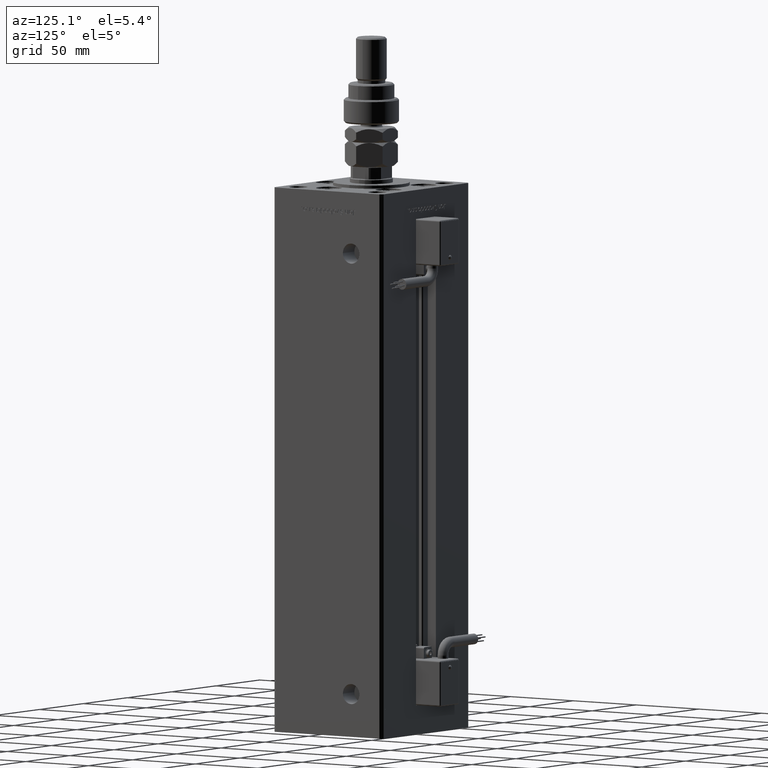
[diagram: clean part render]
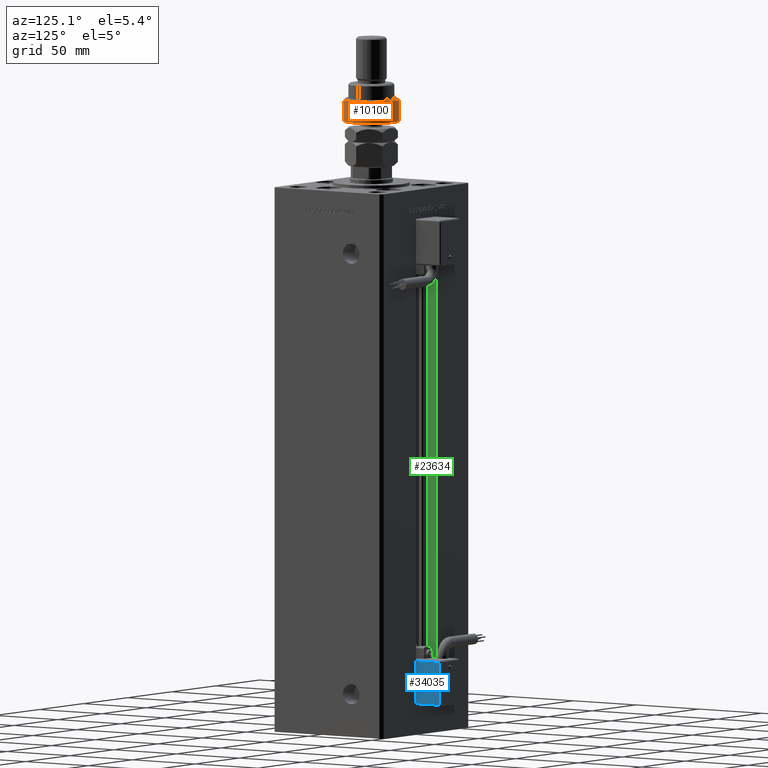
[diagram: same view with three faces highlighted in distinct colors, each labeled with its STEP entity id]
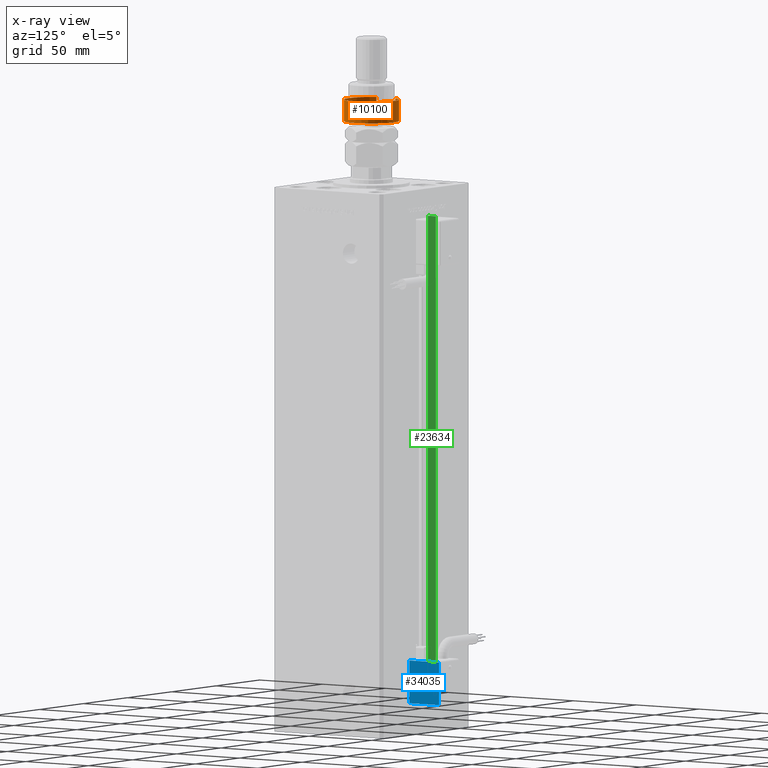
[diagram: x-ray of the same camera — body ghosted, the three highlighted faces saturated]
A machine part, auxiliary view with three faces highlighted in distinct colors.
The next image is the same camera in x-ray (body ghosted, the three faces saturated) — at least one of them is partly hidden behind the body in this view.
Their STEP definitions:

[orange] entity #10100 — the highlighted cylindrical surface (edge-blend (fillet) strip) has radius 18 mm, axis along (-0, -0, -1).
#239 = DIRECTION ( 'NONE',  ( 1.000000000000000000, 0.000000000000000000, 0.000000000000000000 ) ) ;
#475 = DIRECTION ( 'NONE',  ( 0.000000000000000000, 0.000000000000000000, -1.000000000000000000 ) ) ;
#816 = VERTEX_POINT ( 'NONE', #19423 ) ;
#1443 = VECTOR ( 'NONE', #23426, 1000.000000000000000 ) ;
#2456 = CARTESIAN_POINT ( 'NONE',  ( -16.36306817195357155, -7.500000000000000000, 14.99999999999999645 ) ) ;
#3505 = CIRCLE ( 'NONE', #26035, 18.00000000000000000 ) ;
#4119 = ORIENTED_EDGE ( 'NONE', *, *, #29129, .F. ) ;
#5503 = CARTESIAN_POINT ( 'NONE',  ( -16.36306817195357155, 7.500000000000000000, 17.50000000000000000 ) ) ;
#6955 = DIRECTION ( 'NONE',  ( -0.000000000000000000, -0.000000000000000000, 1.000000000000000000 ) ) ;
#7542 = CYLINDRICAL_SURFACE ( 'NONE', #35713, 18.00000000000000000 ) ;
#7947 = ORIENTED_EDGE ( 'NONE', *, *, #38255, .T. ) ;
#9217 = VERTEX_POINT ( 'NONE', #43829 ) ;
#9584 = DIRECTION ( 'NONE',  ( 1.000000000000000000, 0.000000000000000000, 0.000000000000000000 ) ) ;
#10100 = ADVANCED_FACE ( 'NONE', ( #17241 ), #7542, .T. ) ;
#11237 = AXIS2_PLACEMENT_3D ( 'NONE', #34265, #6955, #33394 ) ;
#11812 = AXIS2_PLACEMENT_3D ( 'NONE', #44835, #22593, #239 ) ;
#12834 = DIRECTION ( 'NONE',  ( -1.000000000000000000, 0.000000000000000000, 0.000000000000000000 ) ) ;
#14084 = EDGE_LOOP ( 'NONE', ( #4119, #55389, #7947, #33134, #37594 ) ) ;
#17241 = FACE_OUTER_BOUND ( 'NONE', #14084, .T. ) ;
#18443 = LINE ( 'NONE', #5503, #1443 ) ;
#19423 = CARTESIAN_POINT ( 'NONE',  ( -16.36306817195357155, 7.500000000000000000, 14.99999999999999645 ) ) ;
#20383 = CARTESIAN_POINT ( 'NONE',  ( 18.00000000000000000, 0.000000000000000000, 1.000000000000011324 ) ) ;
#20598 = CIRCLE ( 'NONE', #11237, 18.00000000000000000 ) ;
#21185 = CIRCLE ( 'NONE', #11812, 18.00000000000000000 ) ;
#22234 = CARTESIAN_POINT ( 'NONE',  ( 0.000000000000000000, 0.000000000000000000, 16.00000000000000000 ) ) ;
#22593 = DIRECTION ( 'NONE',  ( -0.000000000000000000, -0.000000000000000000, 1.000000000000000000 ) ) ;
#23038 = VERTEX_POINT ( 'NONE', #20383 ) ;
#23426 = DIRECTION ( 'NONE',  ( -0.000000000000000000, -0.000000000000000000, -1.000000000000000000 ) ) ;
#26035 = AXIS2_PLACEMENT_3D ( 'NONE', #48899, #475, #9584 ) ;
#26816 = LINE ( 'NONE', #49064, #41179 ) ;
#29129 = EDGE_CURVE ( 'NONE', #816, #36877, #18443, .T. ) ;
#29249 = CARTESIAN_POINT ( 'NONE',  ( -16.36306817195357155, 7.500000000000000000, 1.000000000000011324 ) ) ;
#29464 = VERTEX_POINT ( 'NONE', #2456 ) ;
#33134 = ORIENTED_EDGE ( 'NONE', *, *, #35034, .T. ) ;
#33162 = EDGE_CURVE ( 'NONE', #816, #29464, #3505, .T. ) ;
#33394 = DIRECTION ( 'NONE',  ( 1.000000000000000000, 0.000000000000000000, 0.000000000000000000 ) ) ;
#34265 = CARTESIAN_POINT ( 'NONE',  ( 0.000000000000000000, 0.000000000000000000, 1.000000000000011324 ) ) ;
#35034 = EDGE_CURVE ( 'NONE', #9217, #23038, #20598, .T. ) ;
#35332 = DIRECTION ( 'NONE',  ( -0.000000000000000000, -0.000000000000000000, -1.000000000000000000 ) ) ;
#35713 = AXIS2_PLACEMENT_3D ( 'NONE', #22234, #44480, #12834 ) ;
#36877 = VERTEX_POINT ( 'NONE', #29249 ) ;
#37594 = ORIENTED_EDGE ( 'NONE', *, *, #57718, .T. ) ;
#38255 = EDGE_CURVE ( 'NONE', #29464, #9217, #26816, .T. ) ;
#41179 = VECTOR ( 'NONE', #35332, 1000.000000000000000 ) ;
#43829 = CARTESIAN_POINT ( 'NONE',  ( -16.36306817195357155, -7.500000000000000000, 1.000000000000011324 ) ) ;
#44480 = DIRECTION ( 'NONE',  ( -0.000000000000000000, -0.000000000000000000, -1.000000000000000000 ) ) ;
#44835 = CARTESIAN_POINT ( 'NONE',  ( 0.000000000000000000, 0.000000000000000000, 1.000000000000011324 ) ) ;
#48899 = CARTESIAN_POINT ( 'NONE',  ( 0.000000000000000000, 0.000000000000000000, 14.99999999999999645 ) ) ;
#49064 = CARTESIAN_POINT ( 'NONE',  ( -16.36306817195357155, -7.500000000000000000, 17.50000000000000000 ) ) ;
#55389 = ORIENTED_EDGE ( 'NONE', *, *, #33162, .T. ) ;
#57718 = EDGE_CURVE ( 'NONE', #23038, #36877, #21185, .T. ) ;

[blue] entity #34035 — the highlighted planar face has unit normal (-1, 0, 0).
#573 = CARTESIAN_POINT ( 'NONE',  ( -10.80000000000000071, 50.50000000000000000, -55.00000000000000000 ) ) ;
#688 = VECTOR ( 'NONE', #13132, 1000.000000000000000 ) ;
#1239 = ORIENTED_EDGE ( 'NONE', *, *, #12172, .T. ) ;
#2373 = CARTESIAN_POINT ( 'NONE',  ( -10.80000000000000071, 27.00000000000000000, -26.00000000000000000 ) ) ;
#7889 = VERTEX_POINT ( 'NONE', #39754 ) ;
#12172 = EDGE_CURVE ( 'NONE', #18997, #16829, #12776, .T. ) ;
#12609 = ORIENTED_EDGE ( 'NONE', *, *, #33232, .T. ) ;
#12776 = LINE ( 'NONE', #48539, #28303 ) ;
#13132 = DIRECTION ( 'NONE',  ( -2.220446049250000002E-16, -1.200000000000000024E-16, 1.000000000000000000 ) ) ;
#16829 = VERTEX_POINT ( 'NONE', #50367 ) ;
#17294 = CARTESIAN_POINT ( 'NONE',  ( -10.80000000000000071, 26.00000000000000000, -26.00000000000000000 ) ) ;
#18979 = ORIENTED_EDGE ( 'NONE', *, *, #19601, .T. ) ;
#18997 = VERTEX_POINT ( 'NONE', #19924 ) ;
#19601 = EDGE_CURVE ( 'NONE', #7889, #18997, #46298, .T. ) ;
#19924 = CARTESIAN_POINT ( 'NONE',  ( -10.80000000000000071, 50.50000000000000000, -54.00000000000000000 ) ) ;
#27468 = VECTOR ( 'NONE', #35481, 1000.000000000000000 ) ;
#27887 = VERTEX_POINT ( 'NONE', #2373 ) ;
#27947 = DIRECTION ( 'NONE',  ( 3.108624468950000014E-32, -1.000000000000000000, -1.400000000000000069E-16 ) ) ;
#28303 = VECTOR ( 'NONE', #27947, 1000.000000000000000 ) ;
#30506 = EDGE_LOOP ( 'NONE', ( #38287, #18979, #1239, #12609 ) ) ;
#31631 = LINE ( 'NONE', #35155, #688 ) ;
#31876 = PLANE ( 'NONE',  #45851 ) ;
#33232 = EDGE_CURVE ( 'NONE', #16829, #27887, #31631, .T. ) ;
#34020 = LINE ( 'NONE', #17294, #27468 ) ;
#34035 = ADVANCED_FACE ( 'NONE', ( #41225 ), #31876, .F. ) ;
#35155 = CARTESIAN_POINT ( 'NONE',  ( -10.80000000000000071, 27.00000000000000000, -55.00000000000000000 ) ) ;
#35481 = DIRECTION ( 'NONE',  ( -3.108624468950000014E-32, 1.000000000000000000, 1.400000000000000069E-16 ) ) ;
#38287 = ORIENTED_EDGE ( 'NONE', *, *, #45536, .T. ) ;
#39754 = CARTESIAN_POINT ( 'NONE',  ( -10.80000000000000071, 50.50000000000000000, -26.00000000000000000 ) ) ;
#41225 = FACE_OUTER_BOUND ( 'NONE', #30506, .T. ) ;
#45536 = EDGE_CURVE ( 'NONE', #27887, #7889, #34020, .T. ) ;
#45851 = AXIS2_PLACEMENT_3D ( 'NONE', #49724, #49154, #54420 ) ;
#46298 = LINE ( 'NONE', #573, #47117 ) ;
#47117 = VECTOR ( 'NONE', #54257, 1000.000000000000000 ) ;
#48539 = CARTESIAN_POINT ( 'NONE',  ( -10.80000000000000071, 26.00000000000000000, -54.00000000000000000 ) ) ;
#49154 = DIRECTION ( 'NONE',  ( 1.000000000000000000, 4.930380657629929601E-32, 1.094764425253299406E-47 ) ) ;
#49724 = CARTESIAN_POINT ( 'NONE',  ( -10.80000000000000071, 26.00000000000000000, -55.00000000000000000 ) ) ;
#50367 = CARTESIAN_POINT ( 'NONE',  ( -10.80000000000000071, 27.00000000000000000, -54.00000000000000000 ) ) ;
#54257 = DIRECTION ( 'NONE',  ( 2.220446049250000002E-16, 1.200000000000000024E-16, -1.000000000000000000 ) ) ;
#54420 = DIRECTION ( 'NONE',  ( 0.000000000000000000, -2.220446049250000002E-16, 1.000000000000000000 ) ) ;

[green] entity #23634 — the highlighted planar face has unit normal (-1, 0, 0).
#1090 = CARTESIAN_POINT ( 'NONE',  ( -11.24999999999999822, 36.99999999999999289, 0.000000000000000000 ) ) ;
#4232 = AXIS2_PLACEMENT_3D ( 'NONE', #1090, #55929, #28989 ) ;
#7832 = DIRECTION ( 'NONE',  ( -0.000000000000000000, -1.000000000000000000, -0.000000000000000000 ) ) ;
#9650 = CARTESIAN_POINT ( 'NONE',  ( -11.24999999999999822, 43.50000000000000000, 0.000000000000000000 ) ) ;
#10795 = ORIENTED_EDGE ( 'NONE', *, *, #42293, .F. ) ;
#13509 = DIRECTION ( 'NONE',  ( 0.000000000000000000, 1.000000000000000000, 0.000000000000000000 ) ) ;
#13859 = ORIENTED_EDGE ( 'NONE', *, *, #37280, .F. ) ;
#18333 = CARTESIAN_POINT ( 'NONE',  ( -11.24999999999999822, 36.99999999999999289, 318.5000000000000000 ) ) ;
#21646 = CARTESIAN_POINT ( 'NONE',  ( -11.24999999999999822, 36.99999999999999289, 0.000000000000000000 ) ) ;
#22497 = CARTESIAN_POINT ( 'NONE',  ( -11.24999999999999822, 36.99999999999999289, 0.000000000000000000 ) ) ;
#23634 = ADVANCED_FACE ( 'NONE', ( #55065 ), #55343, .F. ) ;
#27541 = CARTESIAN_POINT ( 'NONE',  ( -11.24999999999999822, 43.50000000000000000, 0.000000000000000000 ) ) ;
#27873 = DIRECTION ( 'NONE',  ( -0.000000000000000000, -0.000000000000000000, 1.000000000000000000 ) ) ;
#28243 = VERTEX_POINT ( 'NONE', #55393 ) ;
#28989 = DIRECTION ( 'NONE',  ( 0.000000000000000000, 0.000000000000000000, 1.000000000000000000 ) ) ;
#29879 = LINE ( 'NONE', #51824, #44147 ) ;
#34110 = VECTOR ( 'NONE', #43903, 1000.000000000000000 ) ;
#35816 = LINE ( 'NONE', #53676, #42090 ) ;
#37280 = EDGE_CURVE ( 'NONE', #49799, #28243, #35816, .T. ) ;
#38580 = VECTOR ( 'NONE', #27873, 1000.000000000000000 ) ;
#38680 = ORIENTED_EDGE ( 'NONE', *, *, #52622, .F. ) ;
#42090 = VECTOR ( 'NONE', #13509, 1000.000000000000000 ) ;
#42293 = EDGE_CURVE ( 'NONE', #45701, #45985, #29879, .T. ) ;
#43903 = DIRECTION ( 'NONE',  ( -0.000000000000000000, -0.000000000000000000, 1.000000000000000000 ) ) ;
#43942 = EDGE_CURVE ( 'NONE', #45701, #28243, #49830, .T. ) ;
#44147 = VECTOR ( 'NONE', #7832, 1000.000000000000000 ) ;
#45701 = VERTEX_POINT ( 'NONE', #27541 ) ;
#45985 = VERTEX_POINT ( 'NONE', #22497 ) ;
#46871 = ORIENTED_EDGE ( 'NONE', *, *, #43942, .T. ) ;
#49799 = VERTEX_POINT ( 'NONE', #18333 ) ;
#49830 = LINE ( 'NONE', #9650, #38580 ) ;
#51824 = CARTESIAN_POINT ( 'NONE',  ( -11.24999999999999822, 36.99999999999999289, 0.000000000000000000 ) ) ;
#52622 = EDGE_CURVE ( 'NONE', #45985, #49799, #53282, .T. ) ;
#53282 = LINE ( 'NONE', #21646, #34110 ) ;
#53676 = CARTESIAN_POINT ( 'NONE',  ( -11.24999999999999822, 0.000000000000000000, 318.5000000000000000 ) ) ;
#55065 = FACE_OUTER_BOUND ( 'NONE', #56157, .T. ) ;
#55343 = PLANE ( 'NONE',  #4232 ) ;
#55393 = CARTESIAN_POINT ( 'NONE',  ( -11.24999999999999822, 43.50000000000000000, 318.5000000000000000 ) ) ;
#55929 = DIRECTION ( 'NONE',  ( -1.000000000000000000, 0.000000000000000000, 0.000000000000000000 ) ) ;
#56157 = EDGE_LOOP ( 'NONE', ( #38680, #10795, #46871, #13859 ) ) ;